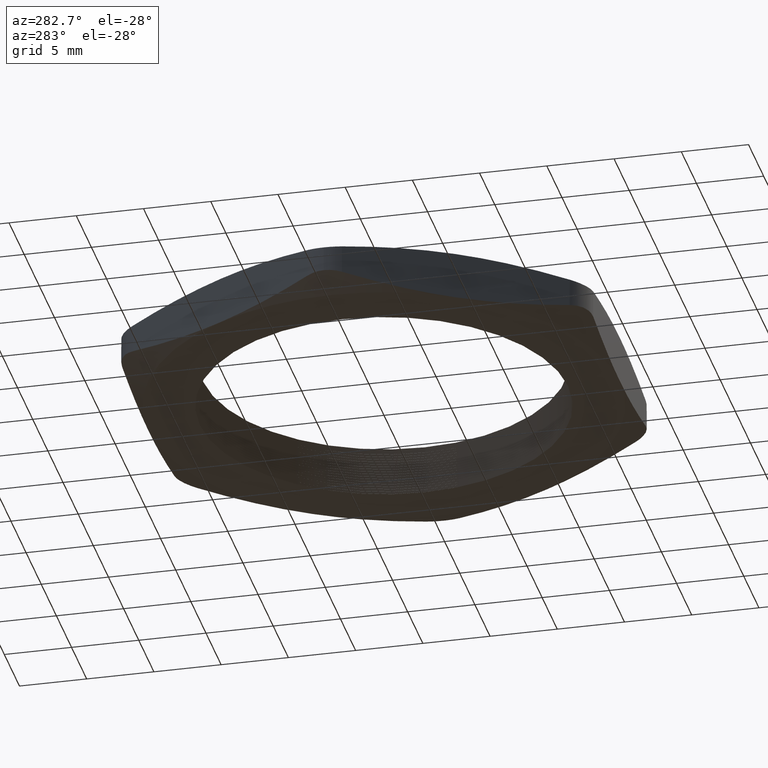
[diagram: clean part render]
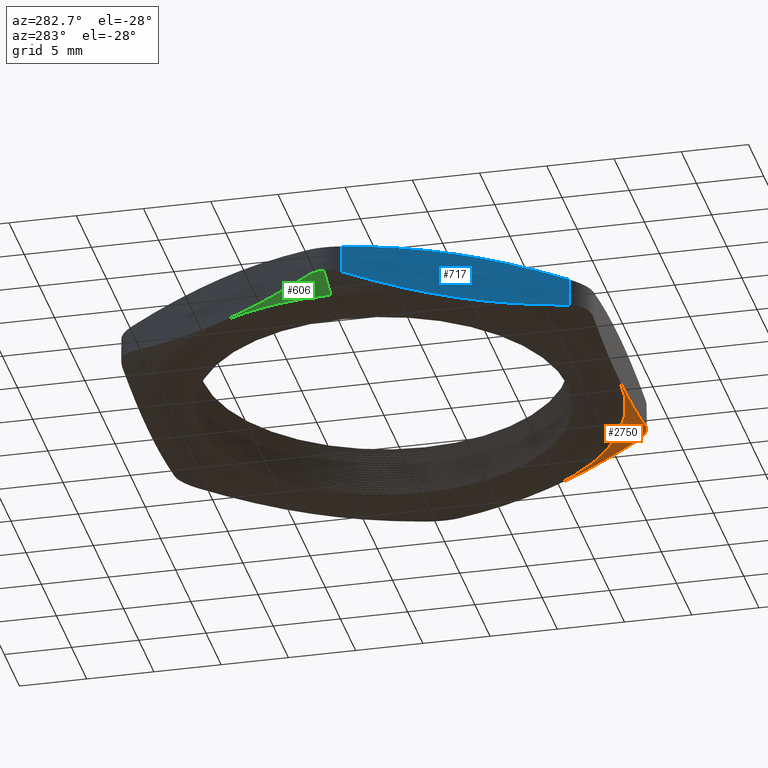
[diagram: same view with three faces highlighted in distinct colors, each labeled with its STEP entity id]
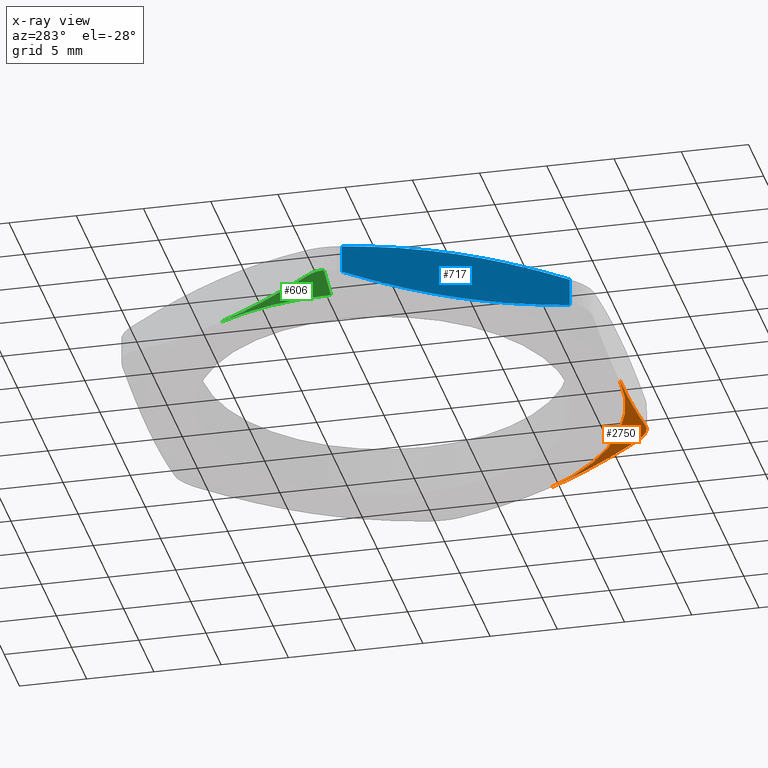
[diagram: x-ray of the same camera — body ghosted, the three highlighted faces saturated]
A machine part, auxiliary view with three faces highlighted in distinct colors.
The next image is the same camera in x-ray (body ghosted, the three faces saturated) — at least one of them is partly hidden behind the body in this view.
Their STEP definitions:

[orange] entity #2750 — the highlighted conical surface has half-angle 70 deg.
#40 = ORIENTED_EDGE ( 'NONE', *, *, #802, .T. ) ;
#41 = ORIENTED_EDGE ( 'NONE', *, *, #106, .F. ) ;
#42 = ORIENTED_EDGE ( 'NONE', *, *, #73, .F. ) ;
#73 = EDGE_CURVE ( 'NONE', #649, #799, #955, .T. ) ;
#106 = EDGE_CURVE ( 'NONE', #714, #762, #1028, .T. ) ;
#649 = VERTEX_POINT ( 'NONE', #2033 ) ;
#714 = VERTEX_POINT ( 'NONE', #2177 ) ;
#730 = EDGE_CURVE ( 'NONE', #649, #762, #2190, .T. ) ;
#762 = VERTEX_POINT ( 'NONE', #2313 ) ;
#799 = VERTEX_POINT ( 'NONE', #2340 ) ;
#802 = EDGE_CURVE ( 'NONE', #714, #799, #2328, .T. ) ;
#944 = CARTESIAN_POINT ( 'NONE',  ( 0.4272391992003229900, -0.6399999999999996800, 0.02893636282500399200 ) ) ;
#945 = CARTESIAN_POINT ( 'NONE',  ( 0.4228744972834604900, -0.6475598854798990700, 0.03034283803736182600 ) ) ;
#946 = CARTESIAN_POINT ( 'NONE',  ( 0.4175211838568055300, -0.6545316998305453800, 0.03141586251707545500 ) ) ;
#947 = CARTESIAN_POINT ( 'NONE',  ( 0.4052323646441028900, -0.6668307572668301700, 0.03285176234214885100 ) ) ;
#948 = CARTESIAN_POINT ( 'NONE',  ( 0.3981449859788218100, -0.6722731251464626500, 0.03322228789917916500 ) ) ;
#949 = CARTESIAN_POINT ( 'NONE',  ( 0.3830330941101629000, -0.6809869061382010100, 0.03321924411820658500 ) ) ;
#950 = CARTESIAN_POINT ( 'NONE',  ( 0.3748312800227898100, -0.6843770564513845800, 0.03285018789960574700 ) ) ;
#951 = CARTESIAN_POINT ( 'NONE',  ( 0.3579505205736554500, -0.6888763424421736600, 0.03140246246007550500 ) ) ;
#952 = CARTESIAN_POINT ( 'NONE',  ( 0.3493652375478312200, -0.6899999999999996100, 0.03034270509659609700 ) ) ;
#953 = CARTESIAN_POINT ( 'NONE',  ( 0.3406366588218794300, -0.6899999999999997200, 0.02893636282500361400 ) ) ;
#955 = B_SPLINE_CURVE_WITH_KNOTS ( 'NONE', 3,
 ( #953, #952, #951, #950, #949, #948, #947, #946, #945, #944 ),
 .UNSPECIFIED., .F., .F.,
 ( 4, 2, 2, 2, 4 ),
 ( 1.997688034320305800E-007, 0.0006645519372777587600, 0.001328904105752085400, 0.001993256274226412500, 0.002657608442700739000 ),
 .UNSPECIFIED. ) ;
#1024 = DIRECTION ( 'NONE',  ( -1.000000000000000000, 0.0000000000000000000, 0.0000000000000000000 ) ) ;
#1025 = DIRECTION ( 'NONE',  ( 0.0000000000000000000, 0.0000000000000000000, -1.000000000000000000 ) ) ;
#1026 = CARTESIAN_POINT ( 'NONE',  ( 0.0000000000000000000, 0.0000000000000000000, 0.0000000000000000000 ) ) ;
#1027 = AXIS2_PLACEMENT_3D ( 'NONE', #1026, #1025, #1024 ) ;
#1028 = CIRCLE ( 'NONE', #1027, 0.6899999999999998400 ) ;
#2033 = CARTESIAN_POINT ( 'NONE',  ( 0.3406366588218794300, -0.6899999999999997200, 0.02893636282500361400 ) ) ;
#2177 = CARTESIAN_POINT ( 'NONE',  ( 0.5975575286112626600, -0.3450000000000000300, 0.0000000000000000000 ) ) ;
#2184 = CARTESIAN_POINT ( 'NONE',  ( 1.182924880895400800E-016, -0.6900000000000000600, 0.0000000000000000000 ) ) ;
#2185 = CARTESIAN_POINT ( 'NONE',  ( 0.05694225467905129900, -0.6899999999999997200, -7.623296525288703100E-017 ) ) ;
#2186 = CARTESIAN_POINT ( 'NONE',  ( 0.1137931150430127700, -0.6899999999999996100, 0.002600746413823140400 ) ) ;
#2187 = CARTESIAN_POINT ( 'NONE',  ( 0.2273291483130264200, -0.6899999999999997200, 0.01251709553805791700 ) ) ;
#2188 = CARTESIAN_POINT ( 'NONE',  ( 0.2840149951219181900, -0.6899999999999996100, 0.01981352144965282900 ) ) ;
#2189 = CARTESIAN_POINT ( 'NONE',  ( 0.3406366588218794300, -0.6899999999999997200, 0.02893636282500361400 ) ) ;
#2190 = B_SPLINE_CURVE_WITH_KNOTS ( 'NONE', 3,
 ( #2189, #2188, #2187, #2186, #2185, #2184 ),
 .UNSPECIFIED., .F., .F.,
 ( 4, 2, 4 ),
 ( 0.03488915931620190800, 0.03925301157993196800, 0.04361686384366202800 ),
 .UNSPECIFIED. ) ;
#2313 = CARTESIAN_POINT ( 'NONE',  ( 1.182924880895400800E-016, -0.6900000000000000600, 0.0000000000000000000 ) ) ;
#2320 = CARTESIAN_POINT ( 'NONE',  ( 0.4272391992003229900, -0.6399999999999996800, 0.02893636282500399200 ) ) ;
#2321 = CARTESIAN_POINT ( 'NONE',  ( 0.4556255874354794800, -0.5908333333333331000, 0.01978917426972858300 ) ) ;
#2322 = CARTESIAN_POINT ( 'NONE',  ( 0.4840119756706360300, -0.5416666666666666300, 0.01248966576200090900 ) ) ;
#2323 = CARTESIAN_POINT ( 'NONE',  ( 0.5407847521409492300, -0.4433333333333334100, 0.002585791463499206100 ) ) ;
#2324 = CARTESIAN_POINT ( 'NONE',  ( 0.5691711403761057200, -0.3941666666666665000, -9.604153102725921800E-017 ) ) ;
#2325 = CARTESIAN_POINT ( 'NONE',  ( 0.5975575286112626600, -0.3450000000000000300, 0.0000000000000000000 ) ) ;
#2328 = B_SPLINE_CURVE_WITH_KNOTS ( 'NONE', 3,
 ( #2325, #2324, #2323, #2322, #2321, #2320 ),
 .UNSPECIFIED., .F., .F.,
 ( 4, 2, 4 ),
 ( 0.008652402074183407700, 0.01297848764122127400, 0.01730457320825913900 ),
 .UNSPECIFIED. ) ;
#2340 = CARTESIAN_POINT ( 'NONE',  ( 0.4272391992003229900, -0.6399999999999996800, 0.02893636282500399200 ) ) ;
#2514 = DIRECTION ( 'NONE',  ( -1.000000000000000000, 0.0000000000000000000, 0.0000000000000000000 ) ) ;
#2515 = DIRECTION ( 'NONE',  ( 0.0000000000000000000, 0.0000000000000000000, 1.000000000000000000 ) ) ;
#2516 = CARTESIAN_POINT ( 'NONE',  ( 0.0000000000000000000, 0.0000000000000000000, 0.0000000000000000000 ) ) ;
#2517 = AXIS2_PLACEMENT_3D ( 'NONE', #2516, #2515, #2514 ) ;
#2519 = CONICAL_SURFACE ( 'NONE', #2517, 0.6900000000000000600, 1.221730476396033500 ) ;
#2520 = FACE_OUTER_BOUND ( 'NONE', #2743, .T. ) ;
#2743 = EDGE_LOOP ( 'NONE', ( #2744, #41, #40, #42 ) ) ;
#2744 = ORIENTED_EDGE ( 'NONE', *, *, #730, .T. ) ;
#2750 = ADVANCED_FACE ( 'NONE', ( #2520 ), #2519, .T. ) ;

[blue] entity #717 — the highlighted planar face has unit normal (0.866, 0.5, 0).
#575 = VERTEX_POINT ( 'NONE', #1887 ) ;
#631 = VERTEX_POINT ( 'NONE', #2008 ) ;
#653 = EDGE_CURVE ( 'NONE', #631, #575, #2015, .T. ) ;
#692 = VERTEX_POINT ( 'NONE', #2121 ) ;
#693 = ORIENTED_EDGE ( 'NONE', *, *, #694, .F. ) ;
#694 = EDGE_CURVE ( 'NONE', #631, #692, #2120, .T. ) ;
#717 = ADVANCED_FACE ( 'NONE', ( #2166 ), #2165, .F. ) ;
#718 = EDGE_LOOP ( 'NONE', ( #719, #752, #773, #693, #722, #723 ) ) ;
#719 = ORIENTED_EDGE ( 'NONE', *, *, #720, .F. ) ;
#720 = EDGE_CURVE ( 'NONE', #721, #751, #2160, .T. ) ;
#721 = VERTEX_POINT ( 'NONE', #2159 ) ;
#722 = ORIENTED_EDGE ( 'NONE', *, *, #653, .T. ) ;
#723 = ORIENTED_EDGE ( 'NONE', *, *, #724, .F. ) ;
#724 = EDGE_CURVE ( 'NONE', #751, #575, #2203, .T. ) ;
#751 = VERTEX_POINT ( 'NONE', #2288 ) ;
#752 = ORIENTED_EDGE ( 'NONE', *, *, #753, .T. ) ;
#753 = EDGE_CURVE ( 'NONE', #721, #772, #2287, .T. ) ;
#772 = VERTEX_POINT ( 'NONE', #2300 ) ;
#773 = ORIENTED_EDGE ( 'NONE', *, *, #774, .F. ) ;
#774 = EDGE_CURVE ( 'NONE', #692, #772, #2293, .T. ) ;
#1887 = CARTESIAN_POINT ( 'NONE',  ( -0.7678758580222022600, -0.05000000000000010700, 0.02893636282500411700 ) ) ;
#2008 = CARTESIAN_POINT ( 'NONE',  ( -0.7678758580222022600, -0.05000000000000010000, 0.1110636371749958200 ) ) ;
#2012 = DIRECTION ( 'NONE',  ( 0.0000000000000000000, 0.0000000000000000000, -1.000000000000000000 ) ) ;
#2013 = VECTOR ( 'NONE', #2012, 39.37007874015748100 ) ;
#2014 = CARTESIAN_POINT ( 'NONE',  ( -0.7678758580222022600, -0.05000000000000009300, 0.1400000000000000100 ) ) ;
#2015 = LINE ( 'NONE', #2014, #2013 ) ;
#2113 = CARTESIAN_POINT ( 'NONE',  ( -0.5975575286112628800, -0.3449999999999998100, 0.1400000000000000100 ) ) ;
#2114 = CARTESIAN_POINT ( 'NONE',  ( -0.6259439168464194800, -0.2958333333333332300, 0.1399999999999999300 ) ) ;
#2115 = CARTESIAN_POINT ( 'NONE',  ( -0.6543303050815759700, -0.2466666666666665900, 0.1374142085365006000 ) ) ;
#2116 = CARTESIAN_POINT ( 'NONE',  ( -0.7111030815518891700, -0.1483333333333334300, 0.1275103342379989800 ) ) ;
#2117 = CARTESIAN_POINT ( 'NONE',  ( -0.7394894697870455500, -0.09916666666666666700, 0.1202108257302712500 ) ) ;
#2118 = CARTESIAN_POINT ( 'NONE',  ( -0.7678758580222022600, -0.05000000000000010000, 0.1110636371749958200 ) ) ;
#2120 = B_SPLINE_CURVE_WITH_KNOTS ( 'NONE', 3,
 ( #2118, #2117, #2116, #2115, #2114, #2113 ),
 .UNSPECIFIED., .F., .F.,
 ( 4, 2, 4 ),
 ( 2.309401076760115900E-007, 0.004326316507145537600, 0.008652402074183399000 ),
 .UNSPECIFIED. ) ;
#2121 = CARTESIAN_POINT ( 'NONE',  ( -0.5975575286112628800, -0.3449999999999998100, 0.1400000000000000100 ) ) ;
#2157 = CARTESIAN_POINT ( 'NONE',  ( -0.4556255874354799300, -0.5908333333333329900, 0.01978917426972868000 ) ) ;
#2158 = CARTESIAN_POINT ( 'NONE',  ( -0.4272391992003234900, -0.6399999999999996800, 0.02893636282500410700 ) ) ;
#2159 = CARTESIAN_POINT ( 'NONE',  ( -0.4272391992003234900, -0.6399999999999996800, 0.02893636282500410700 ) ) ;
#2160 = B_SPLINE_CURVE_WITH_KNOTS ( 'NONE', 3,
 ( #2158, #2157, #2207, #2206, #2205, #2204 ),
 .UNSPECIFIED., .F., .F.,
 ( 4, 2, 4 ),
 ( 2.309401076740175400E-007, 0.004326316507145535800, 0.008652402074183397300 ),
 .UNSPECIFIED. ) ;
#2161 = DIRECTION ( 'NONE',  ( -0.4999999999999998300, 0.8660254037844388200, 0.0000000000000000000 ) ) ;
#2162 = DIRECTION ( 'NONE',  ( 0.8660254037844388200, 0.4999999999999998300, 0.0000000000000000000 ) ) ;
#2163 = CARTESIAN_POINT ( 'NONE',  ( -0.7967433714816836200, -5.084634952041991400E-018, 0.1400000000000000100 ) ) ;
#2164 = AXIS2_PLACEMENT_3D ( 'NONE', #2163, #2162, #2161 ) ;
#2165 = PLANE ( 'NONE',  #2164 ) ;
#2166 = FACE_OUTER_BOUND ( 'NONE', #718, .T. ) ;
#2196 = CARTESIAN_POINT ( 'NONE',  ( -0.7678758580222022600, -0.05000000000000010700, 0.02893636282500411700 ) ) ;
#2197 = CARTESIAN_POINT ( 'NONE',  ( -0.7394894697870457700, -0.09916666666666673600, 0.01978917426972868300 ) ) ;
#2198 = CARTESIAN_POINT ( 'NONE',  ( -0.7111030815518892800, -0.1483333333333333700, 0.01248966576200100300 ) ) ;
#2199 = CARTESIAN_POINT ( 'NONE',  ( -0.6543303050815760800, -0.2466666666666667300, 0.002585791463499329700 ) ) ;
#2200 = CARTESIAN_POINT ( 'NONE',  ( -0.6259439168464193700, -0.2958333333333332800, 4.621998680686849800E-017 ) ) ;
#2201 = CARTESIAN_POINT ( 'NONE',  ( -0.5975575286112626600, -0.3449999999999998600, 0.0000000000000000000 ) ) ;
#2203 = B_SPLINE_CURVE_WITH_KNOTS ( 'NONE', 3,
 ( #2201, #2200, #2199, #2198, #2197, #2196 ),
 .UNSPECIFIED., .F., .F.,
 ( 4, 2, 4 ),
 ( 0.008652402074183397300, 0.01297848764122126000, 0.01730457320825912500 ),
 .UNSPECIFIED. ) ;
#2204 = CARTESIAN_POINT ( 'NONE',  ( -0.5975575286112626600, -0.3449999999999998600, 0.0000000000000000000 ) ) ;
#2205 = CARTESIAN_POINT ( 'NONE',  ( -0.5691711403761063900, -0.3941666666666666100, 5.295623308030822800E-017 ) ) ;
#2206 = CARTESIAN_POINT ( 'NONE',  ( -0.5407847521409496800, -0.4433333333333332500, 0.002585791463499324500 ) ) ;
#2207 = CARTESIAN_POINT ( 'NONE',  ( -0.4840119756706366400, -0.5416666666666665200, 0.01248966576200099800 ) ) ;
#2284 = DIRECTION ( 'NONE',  ( 0.0000000000000000000, 0.0000000000000000000, 1.000000000000000000 ) ) ;
#2285 = VECTOR ( 'NONE', #2284, 39.37007874015748100 ) ;
#2286 = CARTESIAN_POINT ( 'NONE',  ( -0.4272391992003234900, -0.6399999999999996800, 0.1400000000000000100 ) ) ;
#2287 = LINE ( 'NONE', #2286, #2285 ) ;
#2288 = CARTESIAN_POINT ( 'NONE',  ( -0.5975575286112626600, -0.3449999999999998600, 0.0000000000000000000 ) ) ;
#2289 = CARTESIAN_POINT ( 'NONE',  ( -0.4840119756706365300, -0.5416666666666664100, 0.1275103342379989300 ) ) ;
#2290 = CARTESIAN_POINT ( 'NONE',  ( -0.5407847521409497900, -0.4433333333333333000, 0.1374142085365006600 ) ) ;
#2291 = CARTESIAN_POINT ( 'NONE',  ( -0.5691711403761062800, -0.3941666666666663900, 0.1399999999999999000 ) ) ;
#2292 = CARTESIAN_POINT ( 'NONE',  ( -0.5975575286112628800, -0.3449999999999998100, 0.1400000000000000100 ) ) ;
#2293 = B_SPLINE_CURVE_WITH_KNOTS ( 'NONE', 3,
 ( #2292, #2291, #2290, #2289, #2344, #2343 ),
 .UNSPECIFIED., .F., .F.,
 ( 4, 2, 4 ),
 ( 0.008652402074183399000, 0.01297848764122126400, 0.01730457320825912900 ),
 .UNSPECIFIED. ) ;
#2300 = CARTESIAN_POINT ( 'NONE',  ( -0.4272391992003234900, -0.6399999999999996800, 0.1110636371749958300 ) ) ;
#2343 = CARTESIAN_POINT ( 'NONE',  ( -0.4272391992003234900, -0.6399999999999996800, 0.1110636371749958300 ) ) ;
#2344 = CARTESIAN_POINT ( 'NONE',  ( -0.4556255874354800900, -0.5908333333333332100, 0.1202108257302713000 ) ) ;

[green] entity #606 — the highlighted conical surface has half-angle 70 deg.
#606 = ADVANCED_FACE ( 'NONE', ( #1941 ), #1940, .T. ) ;
#607 = EDGE_LOOP ( 'NONE', ( #608, #612, #615, #647 ) ) ;
#608 = ORIENTED_EDGE ( 'NONE', *, *, #609, .F. ) ;
#609 = EDGE_CURVE ( 'NONE', #610, #611, #1935, .T. ) ;
#610 = VERTEX_POINT ( 'NONE', #1931 ) ;
#611 = VERTEX_POINT ( 'NONE', #1930 ) ;
#612 = ORIENTED_EDGE ( 'NONE', *, *, #613, .T. ) ;
#613 = EDGE_CURVE ( 'NONE', #610, #614, #1929, .T. ) ;
#614 = VERTEX_POINT ( 'NONE', #1925 ) ;
#615 = ORIENTED_EDGE ( 'NONE', *, *, #645, .F. ) ;
#645 = EDGE_CURVE ( 'NONE', #646, #614, #1985, .T. ) ;
#646 = VERTEX_POINT ( 'NONE', #1984 ) ;
#647 = ORIENTED_EDGE ( 'NONE', *, *, #648, .T. ) ;
#648 = EDGE_CURVE ( 'NONE', #646, #611, #2034, .T. ) ;
#1925 = CARTESIAN_POINT ( 'NONE',  ( -0.7812733176437584000, -1.109812988441208200E-016, 0.03322077080505195900 ) ) ;
#1926 = DIRECTION ( 'NONE',  ( -0.9396926207859094300, 0.0000000000000000000, 0.3420201433256661000 ) ) ;
#1927 = VECTOR ( 'NONE', #1926, 39.37007874015748900 ) ;
#1928 = CARTESIAN_POINT ( 'NONE',  ( -0.6900000000000000600, 0.0000000000000000000, 0.0000000000000000000 ) ) ;
#1929 = LINE ( 'NONE', #1928, #1927 ) ;
#1930 = CARTESIAN_POINT ( 'NONE',  ( -0.5975575286112626600, 0.3450000000000000800, 0.0000000000000000000 ) ) ;
#1931 = CARTESIAN_POINT ( 'NONE',  ( -0.6899999999999998400, 0.0000000000000000000, 0.0000000000000000000 ) ) ;
#1932 = DIRECTION ( 'NONE',  ( -1.000000000000000000, 0.0000000000000000000, 0.0000000000000000000 ) ) ;
#1933 = DIRECTION ( 'NONE',  ( 0.0000000000000000000, 0.0000000000000000000, -1.000000000000000000 ) ) ;
#1934 = AXIS2_PLACEMENT_3D ( 'NONE', #1939, #1933, #1932 ) ;
#1935 = CIRCLE ( 'NONE', #1934, 0.6899999999999998400 ) ;
#1936 = DIRECTION ( 'NONE',  ( -1.000000000000000000, 0.0000000000000000000, 0.0000000000000000000 ) ) ;
#1937 = DIRECTION ( 'NONE',  ( 0.0000000000000000000, 0.0000000000000000000, 1.000000000000000000 ) ) ;
#1938 = AXIS2_PLACEMENT_3D ( 'NONE', #1947, #1937, #1936 ) ;
#1939 = CARTESIAN_POINT ( 'NONE',  ( 0.0000000000000000000, 0.0000000000000000000, 0.0000000000000000000 ) ) ;
#1940 = CONICAL_SURFACE ( 'NONE', #1938, 0.6900000000000000600, 1.221730476396033500 ) ;
#1941 = FACE_OUTER_BOUND ( 'NONE', #607, .T. ) ;
#1947 = CARTESIAN_POINT ( 'NONE',  ( 0.0000000000000000000, 0.0000000000000000000, 0.0000000000000000000 ) ) ;
#1984 = CARTESIAN_POINT ( 'NONE',  ( -0.7678758580222022600, 0.05000000000000001000, 0.02893636282500409300 ) ) ;
#1985 = B_SPLINE_CURVE_WITH_KNOTS ( 'NONE', 3,
 ( #2040, #2039, #2038, #2037, #2036, #2035 ),
 .UNSPECIFIED., .F., .F.,
 ( 4, 2, 4 ),
 ( 2.306795088636226800E-007, 0.0006652809730551695100, 0.001330331266601475400 ),
 .UNSPECIFIED. ) ;
#2027 = CARTESIAN_POINT ( 'NONE',  ( -0.5975575286112626600, 0.3450000000000000800, 0.0000000000000000000 ) ) ;
#2028 = CARTESIAN_POINT ( 'NONE',  ( -0.6259439168464191500, 0.2958333333333333900, -1.420614313111543000E-017 ) ) ;
#2029 = CARTESIAN_POINT ( 'NONE',  ( -0.6543303050815757500, 0.2466666666666665900, 0.002585791463499278500 ) ) ;
#2030 = CARTESIAN_POINT ( 'NONE',  ( -0.7111030815518889500, 0.1483333333333333700, 0.01248966576200097000 ) ) ;
#2031 = CARTESIAN_POINT ( 'NONE',  ( -0.7394894697870455500, 0.09916666666666662500, 0.01978917426972866300 ) ) ;
#2032 = CARTESIAN_POINT ( 'NONE',  ( -0.7678758580222022600, 0.05000000000000001000, 0.02893636282500409300 ) ) ;
#2034 = B_SPLINE_CURVE_WITH_KNOTS ( 'NONE', 3,
 ( #2032, #2031, #2030, #2029, #2028, #2027 ),
 .UNSPECIFIED., .F., .F.,
 ( 4, 2, 4 ),
 ( 2.309401076833800100E-007, 0.004326316507145549700, 0.008652402074183416400 ),
 .UNSPECIFIED. ) ;
#2035 = CARTESIAN_POINT ( 'NONE',  ( -0.7812733176437584000, -1.109812988441208200E-016, 0.03322077080505195900 ) ) ;
#2036 = CARTESIAN_POINT ( 'NONE',  ( -0.7812733176437586200, 0.008731455169465225700, 0.03322077080505195900 ) ) ;
#2037 = CARTESIAN_POINT ( 'NONE',  ( -0.7801108622826664600, 0.01753872672361869400, 0.03285250970431258900 ) ) ;
#2038 = CARTESIAN_POINT ( 'NONE',  ( -0.7755666793195891100, 0.03442715656578310100, 0.03140470058824342700 ) ) ;
#2039 = CARTESIAN_POINT ( 'NONE',  ( -0.7722447242894295800, 0.04243290165368838300, 0.03034417995158088600 ) ) ;
#2040 = CARTESIAN_POINT ( 'NONE',  ( -0.7678758580222022600, 0.05000000000000001000, 0.02893636282500409300 ) ) ;